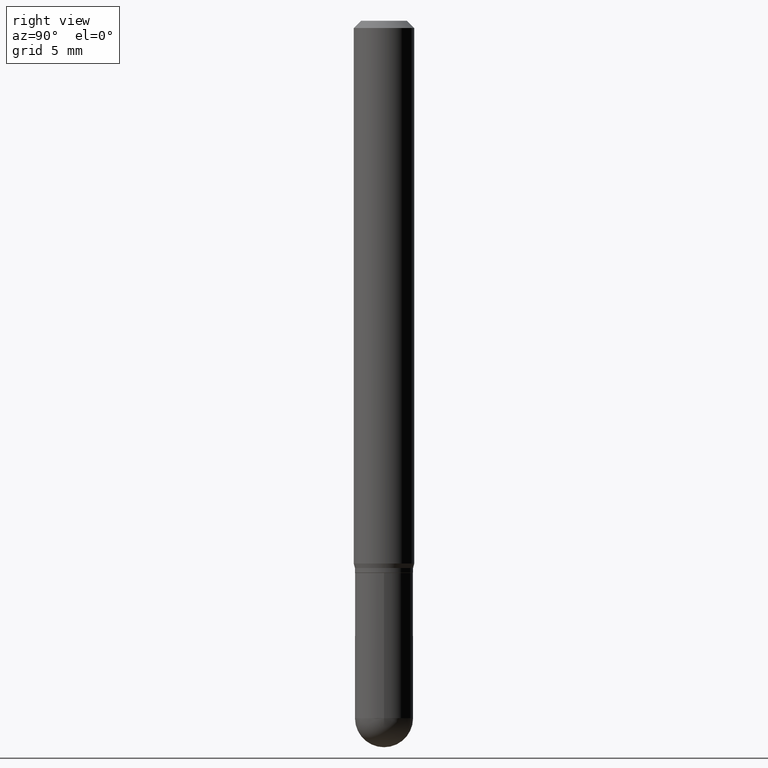
[diagram: clean part render]
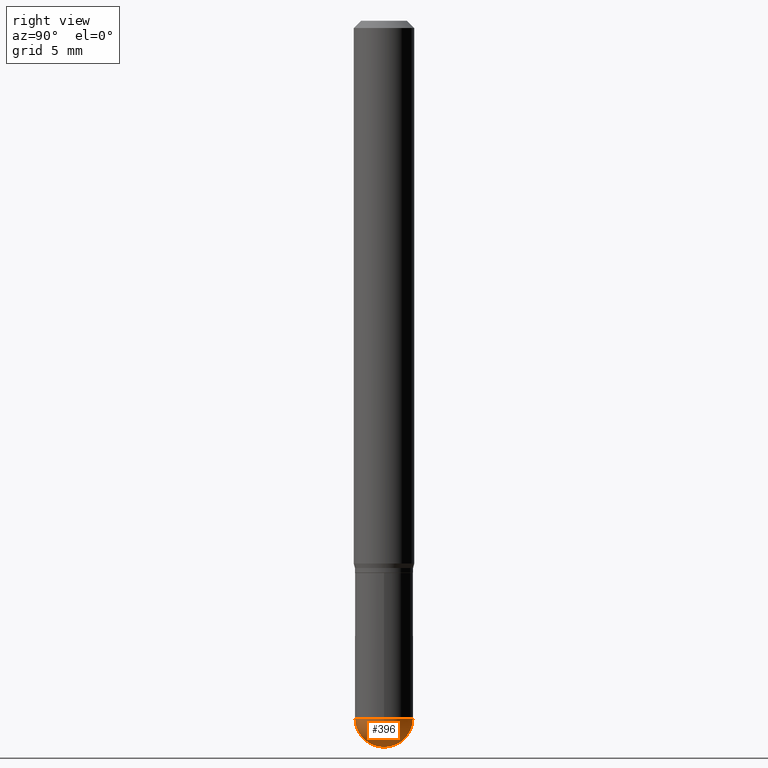
[diagram: same view with one face highlighted and labeled with its STEP entity id]
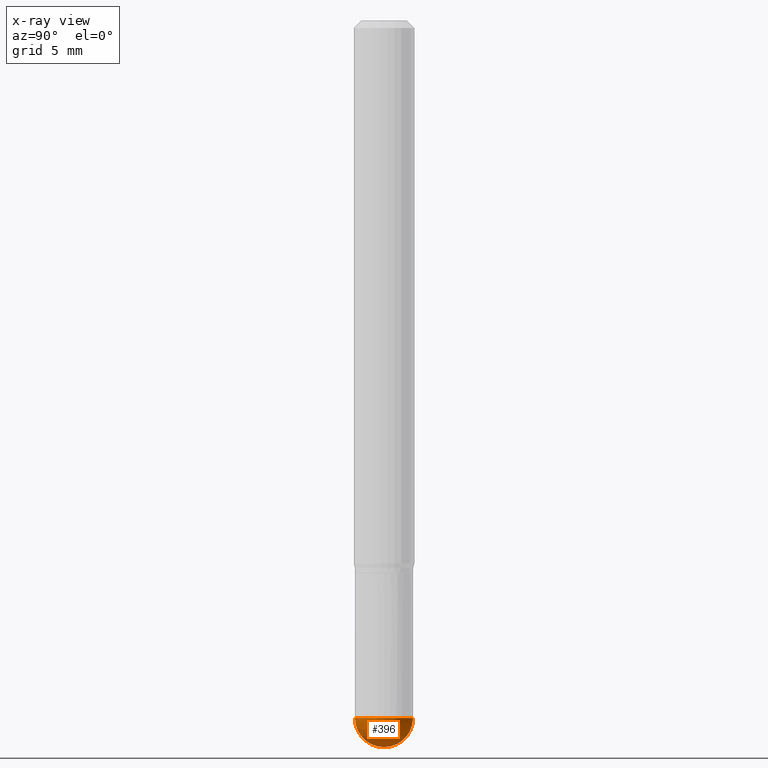
[diagram: x-ray of the same camera — body ghosted, the highlighted face saturated]
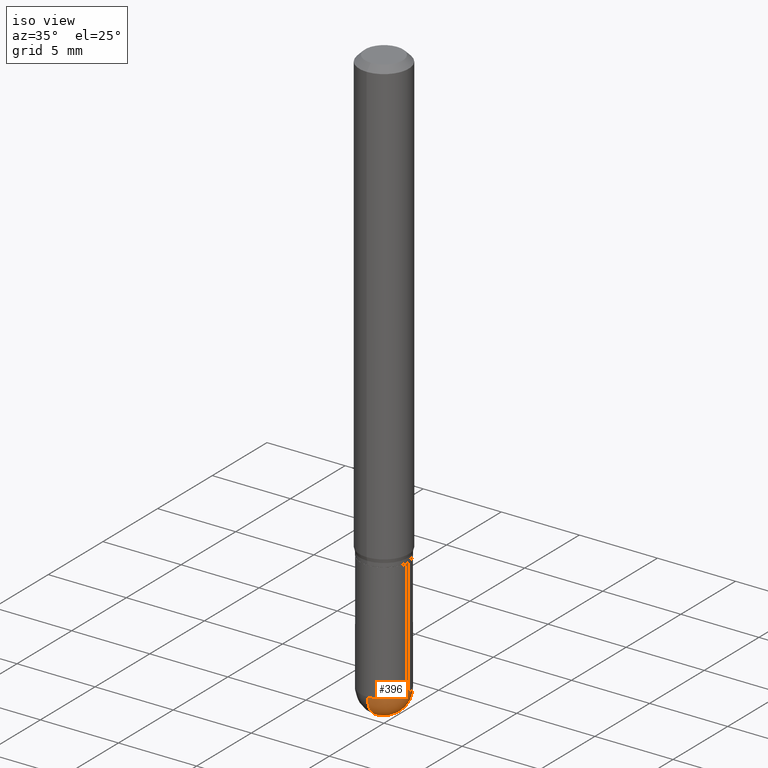
[diagram: same view with one face highlighted and labeled with its STEP entity id]
A machine part, right view. The second image highlights one B-rep face of the part: STEP entity #396.
The next image is the same camera in x-ray: the body ghosted, the highlighted face saturated — about 0% of this face is hidden behind the body in this view.
A second angle (iso view) of the same face is appended — the face is thin or edge-on in the first view.
In plain terms, the highlighted spherical surface has radius 1.524 mm.
Its self-contained STEP definition (entity closure, byte-faithful):
#2 = CIRCLE ( 'NONE', #315, 0.05999999999999995615 ) ;
#5 = EDGE_LOOP ( 'NONE', ( #34, #107, #204, #280 ) ) ;
#20 = DIRECTION ( 'NONE',  ( 1.000000000000000000, -6.982962677686266711E-15, 0.000000000000000000 ) ) ;
#34 = ORIENTED_EDGE ( 'NONE', *, *, #365, .F. ) ;
#61 = CARTESIAN_POINT ( 'NONE',  ( 0.06000000000000001166, -4.922988687768835701E-15, -1.440000000000000169 ) ) ;
#66 = VERTEX_POINT ( 'NONE', #172 ) ;
#80 = DIRECTION ( 'NONE',  ( -1.000000000000000000, 7.105427357601001070E-15, -4.926315508542082329E-29 ) ) ;
#82 = VERTEX_POINT ( 'NONE', #61 ) ;
#83 = CIRCLE ( 'NONE', #306, 0.05999999999999995615 ) ;
#92 = CARTESIAN_POINT ( 'NONE',  ( 3.521475080906597305E-29, -5.027733127934130649E-15, -1.440000000000000169 ) ) ;
#107 = ORIENTED_EDGE ( 'NONE', *, *, #230, .T. ) ;
#112 = AXIS2_PLACEMENT_3D ( 'NONE', #239, #229, #195 ) ;
#117 = CARTESIAN_POINT ( 'NONE',  ( -4.263256414560247449E-16, -0.06000000000000501460, -1.439999999999999947 ) ) ;
#148 = AXIS2_PLACEMENT_3D ( 'NONE', #481, #357, #198 ) ;
#172 = CARTESIAN_POINT ( 'NONE',  ( 4.189777606612110478E-16, 0.05999999999999495320, -1.440000000000000391 ) ) ;
#192 = CARTESIAN_POINT ( 'NONE',  ( 3.665637710410167850E-29, -5.240895948662160894E-15, -1.500000000000000222 ) ) ;
#195 = DIRECTION ( 'NONE',  ( 6.982962677686265922E-15, 1.000000000000000000, -4.553079989440442247E-15 ) ) ;
#198 = DIRECTION ( 'NONE',  ( 1.000000000000000000, -6.982962677686266711E-15, 0.000000000000000000 ) ) ;
#204 = ORIENTED_EDGE ( 'NONE', *, *, #210, .F. ) ;
#209 = DIRECTION ( 'NONE',  ( -7.105427357601001070E-15, -1.000000000000000000, 0.000000000000000000 ) ) ;
#210 = EDGE_CURVE ( 'NONE', #82, #66, #420, .T. ) ;
#225 = CARTESIAN_POINT ( 'NONE',  ( 3.516344083171520973E-29, -5.035081008729014505E-15, -1.440000000000000169 ) ) ;
#229 = DIRECTION ( 'NONE',  ( -1.000000000000000000, 6.982962677686265922E-15, -4.883557194083112340E-29 ) ) ;
#230 = EDGE_CURVE ( 'NONE', #245, #66, #2, .T. ) ;
#239 = CARTESIAN_POINT ( 'NONE',  ( 3.516344083171520973E-29, -5.035081008729014505E-15, -1.440000000000000169 ) ) ;
#245 = VERTEX_POINT ( 'NONE', #192 ) ;
#255 = DIRECTION ( 'NONE',  ( -2.445468806185136597E-29, 3.491481338843145583E-15, 1.000000000000000000 ) ) ;
#261 = AXIS2_PLACEMENT_3D ( 'NONE', #92, #255, #20 ) ;
#265 = FACE_OUTER_BOUND ( 'NONE', #5, .T. ) ;
#280 = ORIENTED_EDGE ( 'NONE', *, *, #375, .F. ) ;
#306 = AXIS2_PLACEMENT_3D ( 'NONE', #416, #80, #209 ) ;
#315 = AXIS2_PLACEMENT_3D ( 'NONE', #225, #381, #415 ) ;
#320 = VERTEX_POINT ( 'NONE', #117 ) ;
#357 = DIRECTION ( 'NONE',  ( -2.445468806185136597E-29, 3.491481338843145583E-15, 1.000000000000000000 ) ) ;
#365 = EDGE_CURVE ( 'NONE', #245, #320, #83, .T. ) ;
#375 = EDGE_CURVE ( 'NONE', #320, #82, #497, .T. ) ;
#381 = DIRECTION ( 'NONE',  ( 1.000000000000000000, -6.982962677686265922E-15, 4.883557194083112340E-29 ) ) ;
#396 = ADVANCED_FACE ( 'NONE', ( #265 ), #477, .T. ) ;
#415 = DIRECTION ( 'NONE',  ( 6.982962677686265922E-15, 1.000000000000000000, 0.000000000000000000 ) ) ;
#416 = CARTESIAN_POINT ( 'NONE',  ( 3.516344083171520973E-29, -5.035081008729014505E-15, -1.440000000000000169 ) ) ;
#420 = CIRCLE ( 'NONE', #261, 0.06000000000000001166 ) ;
#477 = SPHERICAL_SURFACE ( 'NONE', #112, 0.05999999999999995615 ) ;
#481 = CARTESIAN_POINT ( 'NONE',  ( 3.521475080906597305E-29, -5.027733127934130649E-15, -1.440000000000000169 ) ) ;
#497 = CIRCLE ( 'NONE', #148, 0.06000000000000001166 ) ;